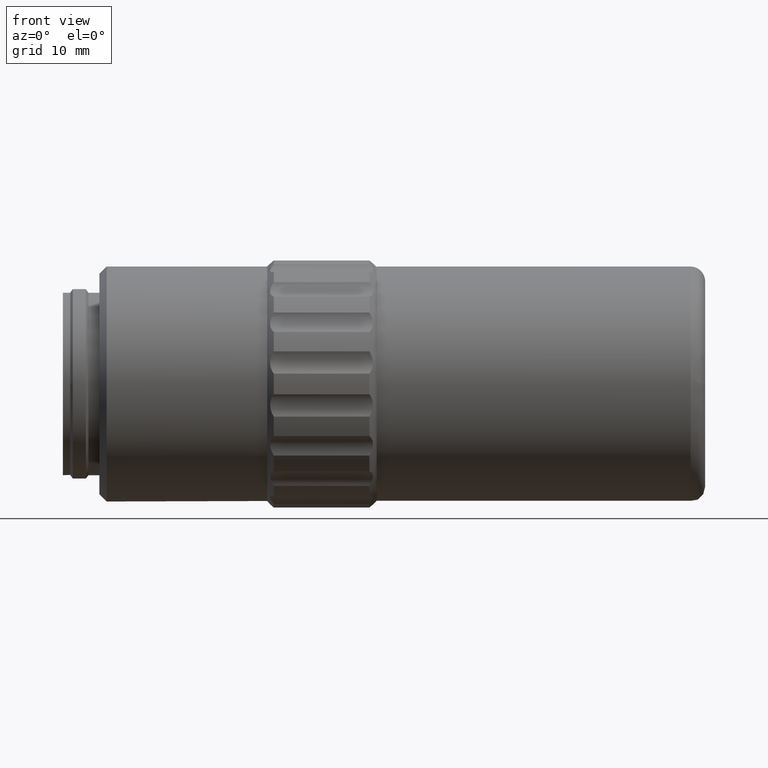
[diagram: clean part render]
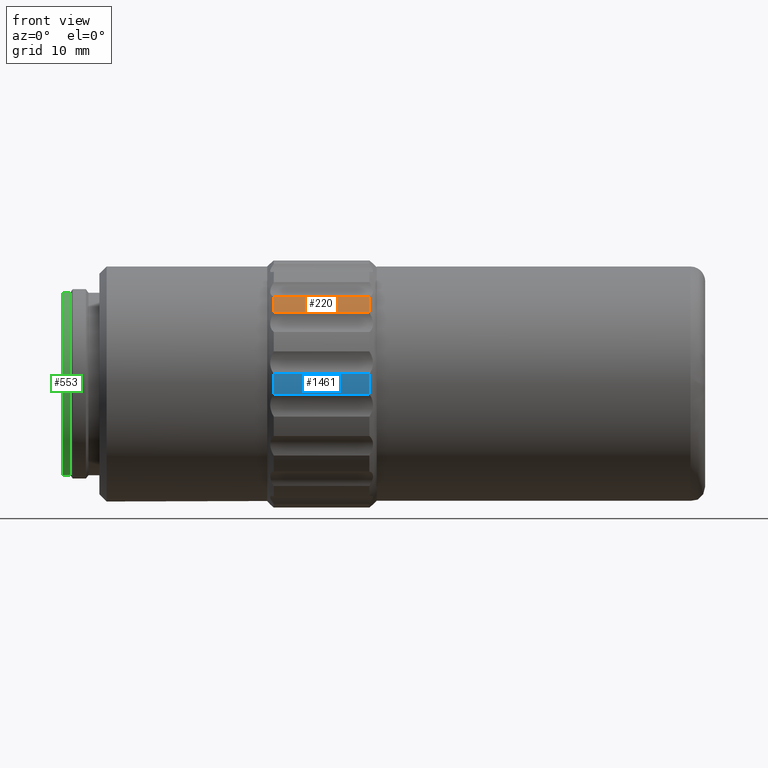
[diagram: same view with three faces highlighted in distinct colors, each labeled with its STEP entity id]
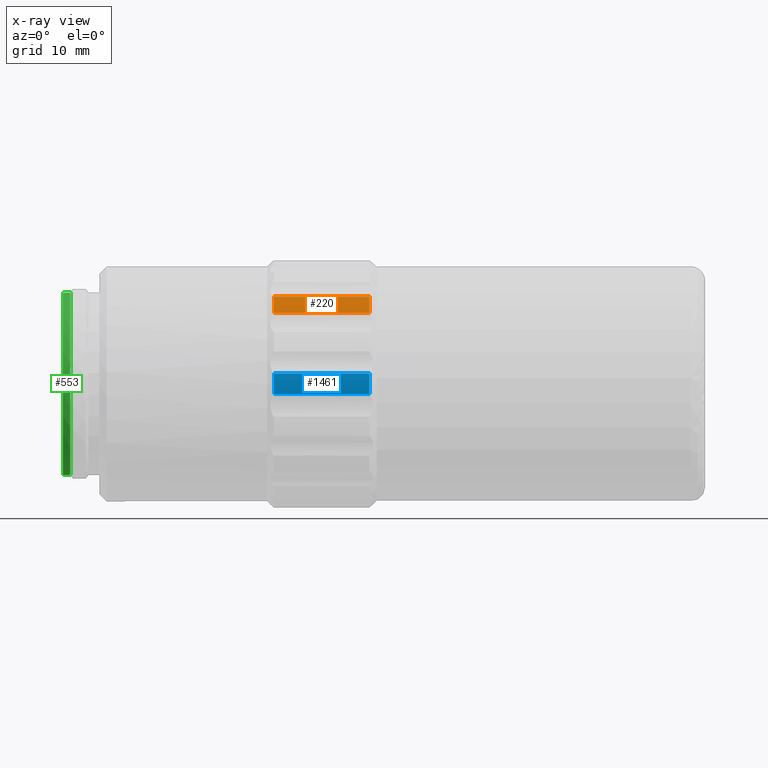
[diagram: x-ray of the same camera — body ghosted, the three highlighted faces saturated]
A machine part, front view with three faces highlighted in distinct colors.
The next image is the same camera in x-ray (body ghosted, the three faces saturated) — at least one of them is partly hidden behind the body in this view.
Their STEP definitions:

[orange] entity #220 — the highlighted cylindrical surface (partial cylindrical patch) has radius 17 mm, axis along (-1, 0, 0).
#6 = AXIS2_PLACEMENT_3D ( 'NONE', #817, #1814, #1984 ) ;
#72 = CARTESIAN_POINT ( 'NONE',  ( 19.34685803487879596, 46.02096199999999726, 0.000000000000000000 ) ) ;
#111 = FACE_OUTER_BOUND ( 'NONE', #1979, .T. ) ;
#176 = CARTESIAN_POINT ( 'NONE',  ( 25.94685803487879738, 33.95401115804232006, 11.97450196783886867 ) ) ;
#220 = ADVANCED_FACE ( 'NONE', ( #111 ), #754, .T. ) ;
#450 = AXIS2_PLACEMENT_3D ( 'NONE', #72, #1697, #1164 ) ;
#606 = EDGE_CURVE ( 'NONE', #1439, #963, #820, .T. ) ;
#615 = LINE ( 'NONE', #176, #1579 ) ;
#662 = CARTESIAN_POINT ( 'NONE',  ( 19.34685803487881017, 32.13297559990991914, 9.804276299192830280 ) ) ;
#730 = VERTEX_POINT ( 'NONE', #1514 ) ;
#754 = CYLINDRICAL_SURFACE ( 'NONE', #1121, 17.00000000000000000 ) ;
#816 = DIRECTION ( 'NONE',  ( -1.000000000000000000, 0.000000000000000000, 0.000000000000000000 ) ) ;
#817 = CARTESIAN_POINT ( 'NONE',  ( 32.44685803487877962, 46.02096199999999726, 0.000000000000000000 ) ) ;
#820 = CIRCLE ( 'NONE', #450, 17.00000000000000000 ) ;
#917 = CIRCLE ( 'NONE', #6, 17.00000000000001421 ) ;
#932 = VECTOR ( 'NONE', #1877, 1000.000000000000000 ) ;
#963 = VERTEX_POINT ( 'NONE', #662 ) ;
#1050 = LINE ( 'NONE', #1854, #932 ) ;
#1121 = AXIS2_PLACEMENT_3D ( 'NONE', #1900, #1745, #1972 ) ;
#1164 = DIRECTION ( 'NONE',  ( 0.000000000000000000, 8.163404592832032979E-16, 1.000000000000000000 ) ) ;
#1211 = ORIENTED_EDGE ( 'NONE', *, *, #2033, .F. ) ;
#1214 = CARTESIAN_POINT ( 'NONE',  ( 19.34685803487880307, 33.95401115804232006, 11.97450196783887932 ) ) ;
#1354 = ORIENTED_EDGE ( 'NONE', *, *, #1648, .T. ) ;
#1439 = VERTEX_POINT ( 'NONE', #1214 ) ;
#1462 = ORIENTED_EDGE ( 'NONE', *, *, #606, .T. ) ;
#1514 = CARTESIAN_POINT ( 'NONE',  ( 32.44685803487877962, 33.95401115804232006, 11.97450196783887932 ) ) ;
#1579 = VECTOR ( 'NONE', #816, 1000.000000000000000 ) ;
#1596 = EDGE_CURVE ( 'NONE', #730, #1439, #615, .T. ) ;
#1648 = EDGE_CURVE ( 'NONE', #963, #1874, #1050, .T. ) ;
#1673 = ORIENTED_EDGE ( 'NONE', *, *, #1596, .T. ) ;
#1697 = DIRECTION ( 'NONE',  ( 1.000000000000000000, -0.000000000000000000, -0.000000000000000000 ) ) ;
#1745 = DIRECTION ( 'NONE',  ( -1.000000000000000000, 0.000000000000000000, 0.000000000000000000 ) ) ;
#1814 = DIRECTION ( 'NONE',  ( 1.000000000000000000, -0.000000000000000000, -0.000000000000000000 ) ) ;
#1854 = CARTESIAN_POINT ( 'NONE',  ( 53.58686043487880823, 32.13297559990991914, 9.804276299192837385 ) ) ;
#1874 = VERTEX_POINT ( 'NONE', #1896 ) ;
#1877 = DIRECTION ( 'NONE',  ( 1.000000000000000000, -0.000000000000000000, -0.000000000000000000 ) ) ;
#1896 = CARTESIAN_POINT ( 'NONE',  ( 32.44685803487876541, 32.13297559990991914, 9.804276299192837385 ) ) ;
#1900 = CARTESIAN_POINT ( 'NONE',  ( 25.94685803487879738, 46.02096199999999726, 0.000000000000000000 ) ) ;
#1972 = DIRECTION ( 'NONE',  ( 0.000000000000000000, 0.000000000000000000, 1.000000000000000000 ) ) ;
#1979 = EDGE_LOOP ( 'NONE', ( #1354, #1211, #1673, #1462 ) ) ;
#1984 = DIRECTION ( 'NONE',  ( 0.000000000000000000, 1.000000000000000000, 6.217248937900876626E-15 ) ) ;
#2033 = EDGE_CURVE ( 'NONE', #730, #1874, #917, .T. ) ;

[blue] entity #1461 — the highlighted cylindrical surface (partial cylindrical patch) has radius 17 mm, axis along (-1, 0, 0).
#112 = CARTESIAN_POINT ( 'NONE',  ( 32.44685803487877251, 29.08007986503451647, -1.416514203673299832 ) ) ;
#175 = CARTESIAN_POINT ( 'NONE',  ( 19.34685803487881728, 29.08007986503450581, -1.416514203673286065 ) ) ;
#204 = DIRECTION ( 'NONE',  ( -1.000000000000000000, 0.000000000000000000, 0.000000000000000000 ) ) ;
#266 = VERTEX_POINT ( 'NONE', #175 ) ;
#285 = CARTESIAN_POINT ( 'NONE',  ( 32.44685803487877962, 29.08007986503451647, 1.416514203673290728 ) ) ;
#302 = EDGE_CURVE ( 'NONE', #1489, #1131, #1023, .T. ) ;
#381 = CARTESIAN_POINT ( 'NONE',  ( 53.58686043487880823, 29.08007986503449871, -1.416514203673273409 ) ) ;
#554 = DIRECTION ( 'NONE',  ( -1.000000000000000000, -0.000000000000000000, -0.000000000000000000 ) ) ;
#616 = AXIS2_PLACEMENT_3D ( 'NONE', #1299, #204, #1120 ) ;
#679 = LINE ( 'NONE', #381, #1237 ) ;
#768 = LINE ( 'NONE', #1273, #1647 ) ;
#862 = DIRECTION ( 'NONE',  ( 1.000000000000000000, -0.000000000000000000, -0.000000000000000000 ) ) ;
#878 = ORIENTED_EDGE ( 'NONE', *, *, #302, .T. ) ;
#939 = VERTEX_POINT ( 'NONE', #1934 ) ;
#1023 = CIRCLE ( 'NONE', #616, 17.00000000000000000 ) ;
#1031 = AXIS2_PLACEMENT_3D ( 'NONE', #2064, #1703, #1736 ) ;
#1049 = EDGE_CURVE ( 'NONE', #266, #1489, #679, .T. ) ;
#1064 = CIRCLE ( 'NONE', #1717, 17.00000000000002132 ) ;
#1082 = FACE_OUTER_BOUND ( 'NONE', #1825, .T. ) ;
#1108 = DIRECTION ( 'NONE',  ( -1.000000000000000000, 0.000000000000000000, 0.000000000000000000 ) ) ;
#1120 = DIRECTION ( 'NONE',  ( 0.000000000000000000, 0.000000000000000000, 1.000000000000000000 ) ) ;
#1131 = VERTEX_POINT ( 'NONE', #285 ) ;
#1180 = CARTESIAN_POINT ( 'NONE',  ( 19.34685803487881728, 46.02096199999999726, 0.000000000000000000 ) ) ;
#1237 = VECTOR ( 'NONE', #862, 1000.000000000000000 ) ;
#1273 = CARTESIAN_POINT ( 'NONE',  ( 53.58686043487880823, 29.08007986503450226, 1.416514203673268080 ) ) ;
#1299 = CARTESIAN_POINT ( 'NONE',  ( 32.44685803487880094, 46.02096199999999726, 0.000000000000000000 ) ) ;
#1316 = EDGE_CURVE ( 'NONE', #266, #939, #1064, .T. ) ;
#1461 = ADVANCED_FACE ( 'NONE', ( #1082 ), #2074, .T. ) ;
#1489 = VERTEX_POINT ( 'NONE', #112 ) ;
#1590 = ORIENTED_EDGE ( 'NONE', *, *, #1049, .T. ) ;
#1647 = VECTOR ( 'NONE', #1108, 1000.000000000000000 ) ;
#1703 = DIRECTION ( 'NONE',  ( -1.000000000000000000, 0.000000000000000000, 0.000000000000000000 ) ) ;
#1710 = ORIENTED_EDGE ( 'NONE', *, *, #1752, .T. ) ;
#1717 = AXIS2_PLACEMENT_3D ( 'NONE', #1180, #554, #1802 ) ;
#1736 = DIRECTION ( 'NONE',  ( 0.000000000000000000, 0.000000000000000000, 1.000000000000000000 ) ) ;
#1743 = ORIENTED_EDGE ( 'NONE', *, *, #1316, .F. ) ;
#1752 = EDGE_CURVE ( 'NONE', #1131, #939, #768, .T. ) ;
#1802 = DIRECTION ( 'NONE',  ( 0.000000000000000000, -1.000000000000000000, 0.000000000000000000 ) ) ;
#1825 = EDGE_LOOP ( 'NONE', ( #1590, #878, #1710, #1743 ) ) ;
#1934 = CARTESIAN_POINT ( 'NONE',  ( 19.34685803487881017, 29.08007986503451647, 1.416514203673290728 ) ) ;
#2064 = CARTESIAN_POINT ( 'NONE',  ( 25.94685803487879738, 46.02096199999999726, 0.000000000000000000 ) ) ;
#2074 = CYLINDRICAL_SURFACE ( 'NONE', #1031, 17.00000000000000000 ) ;

[green] entity #553 — the highlighted cylindrical surface (bore or boss wall) has radius 12.5 mm, axis along (-1, 0, 0).
#159 = EDGE_LOOP ( 'NONE', ( #331 ) ) ;
#179 = AXIS2_PLACEMENT_3D ( 'NONE', #1476, #667, #508 ) ;
#248 = VERTEX_POINT ( 'NONE', #700 ) ;
#331 = ORIENTED_EDGE ( 'NONE', *, *, #1661, .F. ) ;
#403 = EDGE_LOOP ( 'NONE', ( #1281 ) ) ;
#474 = DIRECTION ( 'NONE',  ( 0.000000000000000000, 0.000000000000000000, 1.000000000000000000 ) ) ;
#508 = DIRECTION ( 'NONE',  ( 0.000000000000000000, 0.000000000000000000, 1.000000000000000000 ) ) ;
#516 = DIRECTION ( 'NONE',  ( -1.000000000000000000, 0.000000000000000000, 0.000000000000000000 ) ) ;
#541 = CARTESIAN_POINT ( 'NONE',  ( -8.553141965121202617, 33.52096200000000437, 0.000000000000000000 ) ) ;
#553 = ADVANCED_FACE ( 'NONE', ( #1297, #1285 ), #674, .T. ) ;
#667 = DIRECTION ( 'NONE',  ( 1.000000000000000000, -0.000000000000000000, -0.000000000000000000 ) ) ;
#674 = CYLINDRICAL_SURFACE ( 'NONE', #1705, 12.50000000000000000 ) ;
#700 = CARTESIAN_POINT ( 'NONE',  ( -9.553141965121202617, 46.02096199999999726, 12.50000000000000000 ) ) ;
#830 = AXIS2_PLACEMENT_3D ( 'NONE', #1675, #2026, #1351 ) ;
#1213 = VERTEX_POINT ( 'NONE', #541 ) ;
#1281 = ORIENTED_EDGE ( 'NONE', *, *, #2004, .T. ) ;
#1285 = FACE_OUTER_BOUND ( 'NONE', #403, .T. ) ;
#1297 = FACE_OUTER_BOUND ( 'NONE', #159, .T. ) ;
#1351 = DIRECTION ( 'NONE',  ( 0.000000000000000000, -1.000000000000000000, 0.000000000000000000 ) ) ;
#1452 = CARTESIAN_POINT ( 'NONE',  ( -9.053141965121202617, 46.02096199999999726, 0.000000000000000000 ) ) ;
#1476 = CARTESIAN_POINT ( 'NONE',  ( -9.553141965121202617, 46.02096199999999726, 0.000000000000000000 ) ) ;
#1532 = CIRCLE ( 'NONE', #179, 12.50000000000000000 ) ;
#1661 = EDGE_CURVE ( 'NONE', #1213, #1213, #1748, .T. ) ;
#1675 = CARTESIAN_POINT ( 'NONE',  ( -8.553141965121202617, 46.02096199999999726, 0.000000000000000000 ) ) ;
#1705 = AXIS2_PLACEMENT_3D ( 'NONE', #1452, #516, #474 ) ;
#1748 = CIRCLE ( 'NONE', #830, 12.49999999999999645 ) ;
#2004 = EDGE_CURVE ( 'NONE', #248, #248, #1532, .T. ) ;
#2026 = DIRECTION ( 'NONE',  ( 1.000000000000000000, 0.000000000000000000, 0.000000000000000000 ) ) ;